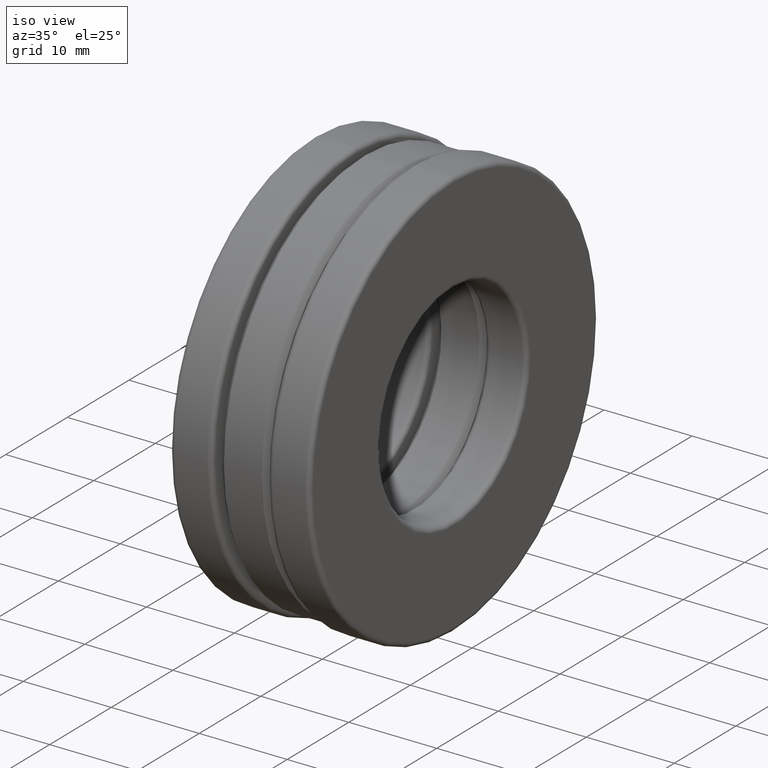
[diagram: clean part render]
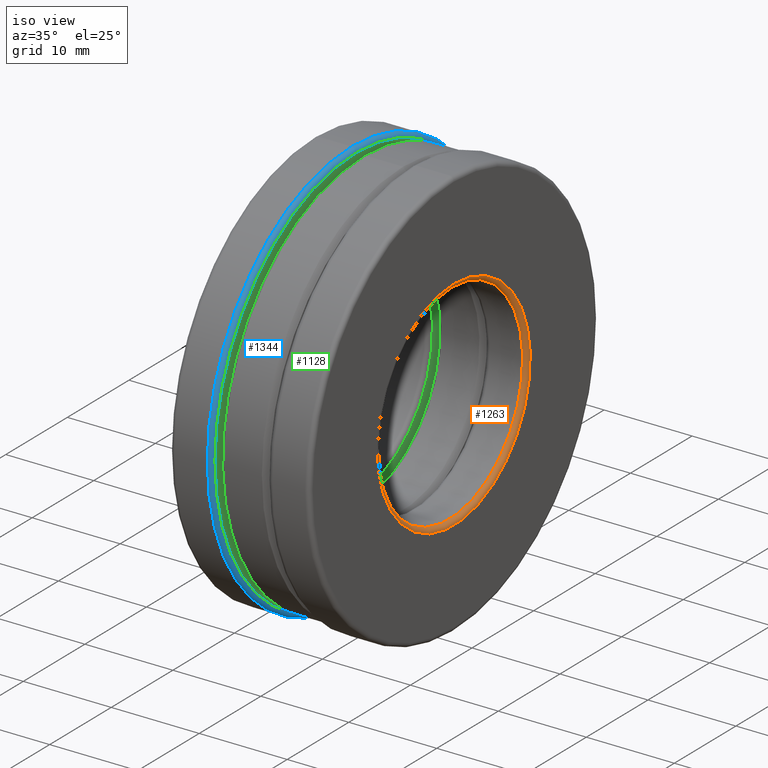
[diagram: same view with three faces highlighted in distinct colors, each labeled with its STEP entity id]
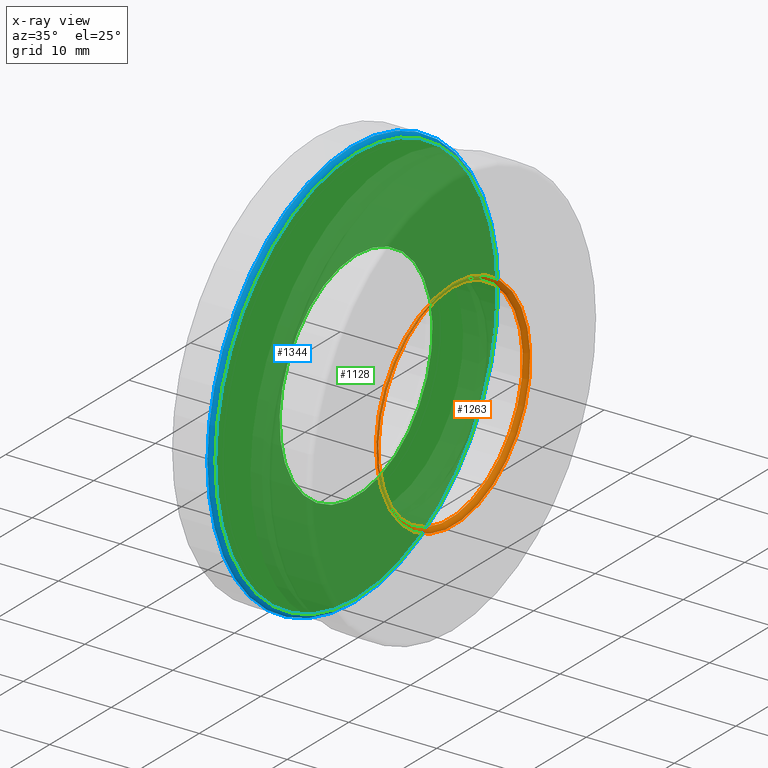
[diagram: x-ray of the same camera — body ghosted, the three highlighted faces saturated]
A machine part, iso view with three faces highlighted in distinct colors.
The next image is the same camera in x-ray (body ghosted, the three faces saturated) — at least one of them is partly hidden behind the body in this view.
Their STEP definitions:

[orange] entity #1263 — the highlighted toroidal blend (fillet) surface has major radius 12.4142 mm and minor (blend) radius 0.508 mm.
#3 = DIRECTION ( 'NONE',  ( 0.0000000000000000000, 0.0000000000000000000, 1.000000000000000000 ) ) ;
#33 = EDGE_CURVE ( 'NONE', #538, #538, #1082, .T. ) ;
#51 = ORIENTED_EDGE ( 'NONE', *, *, #33, .T. ) ;
#76 = DIRECTION ( 'NONE',  ( -1.000000000000000000, -0.0000000000000000000, -0.0000000000000000000 ) ) ;
#183 = CARTESIAN_POINT ( 'NONE',  ( 0.2925000000000000400, 0.0000000000000000000, 0.0000000000000000000 ) ) ;
#206 = DIRECTION ( 'NONE',  ( 0.0000000000000000000, 0.0000000000000000000, 1.000000000000000000 ) ) ;
#383 = CARTESIAN_POINT ( 'NONE',  ( 0.2925000000000000400, 0.0000000000000000000, 0.4687500000000000000 ) ) ;
#397 = DIRECTION ( 'NONE',  ( 0.0000000000000000000, 0.0000000000000000000, 1.000000000000000000 ) ) ;
#405 = AXIS2_PLACEMENT_3D ( 'NONE', #900, #666, #3 ) ;
#441 = VERTEX_POINT ( 'NONE', #826 ) ;
#523 = DIRECTION ( 'NONE',  ( -1.000000000000000000, -0.0000000000000000000, -0.0000000000000000000 ) ) ;
#530 = CIRCLE ( 'NONE', #786, 0.4887499999999999600 ) ;
#531 = EDGE_LOOP ( 'NONE', ( #1001 ) ) ;
#538 = VERTEX_POINT ( 'NONE', #383 ) ;
#666 = DIRECTION ( 'NONE',  ( -1.000000000000000000, -0.0000000000000000000, -0.0000000000000000000 ) ) ;
#674 = AXIS2_PLACEMENT_3D ( 'NONE', #183, #523, #397 ) ;
#786 = AXIS2_PLACEMENT_3D ( 'NONE', #974, #76, #206 ) ;
#826 = CARTESIAN_POINT ( 'NONE',  ( 0.3125000000000000000, 0.0000000000000000000, 0.4887499999999999600 ) ) ;
#900 = CARTESIAN_POINT ( 'NONE',  ( 0.2925000000000000400, 0.0000000000000000000, 0.0000000000000000000 ) ) ;
#974 = CARTESIAN_POINT ( 'NONE',  ( 0.3125000000000000000, 0.0000000000000000000, 0.0000000000000000000 ) ) ;
#979 = FACE_OUTER_BOUND ( 'NONE', #531, .T. ) ;
#1001 = ORIENTED_EDGE ( 'NONE', *, *, #1193, .F. ) ;
#1082 = CIRCLE ( 'NONE', #674, 0.4687500000000000000 ) ;
#1146 = FACE_OUTER_BOUND ( 'NONE', #1286, .T. ) ;
#1183 = TOROIDAL_SURFACE ( 'NONE', #405, 0.4887499999999999600, 0.01999999999999995900 ) ;
#1193 = EDGE_CURVE ( 'NONE', #441, #441, #530, .T. ) ;
#1263 = ADVANCED_FACE ( 'NONE', ( #979, #1146 ), #1183, .T. ) ;
#1286 = EDGE_LOOP ( 'NONE', ( #51 ) ) ;

[blue] entity #1344 — the highlighted toroidal blend (fillet) surface has major radius 22.9076 mm and minor (blend) radius 0.508 mm.
#18 = CIRCLE ( 'NONE', #1167, 0.9018749999999996500 ) ;
#82 = DIRECTION ( 'NONE',  ( -1.000000000000000000, -0.0000000000000000000, -0.0000000000000000000 ) ) ;
#145 = VERTEX_POINT ( 'NONE', #829 ) ;
#198 = FACE_OUTER_BOUND ( 'NONE', #1135, .T. ) ;
#211 = CARTESIAN_POINT ( 'NONE',  ( -0.1450000000000000500, 0.0000000000000000000, 0.9218749999999995600 ) ) ;
#234 = AXIS2_PLACEMENT_3D ( 'NONE', #444, #1361, #881 ) ;
#333 = ORIENTED_EDGE ( 'NONE', *, *, #1251, .F. ) ;
#444 = CARTESIAN_POINT ( 'NONE',  ( -0.1450000000000000500, 0.0000000000000000000, 0.0000000000000000000 ) ) ;
#639 = DIRECTION ( 'NONE',  ( 0.0000000000000000000, 0.0000000000000000000, 1.000000000000000000 ) ) ;
#743 = CARTESIAN_POINT ( 'NONE',  ( -0.1450000000000000500, 0.0000000000000000000, 0.0000000000000000000 ) ) ;
#800 = EDGE_CURVE ( 'NONE', #145, #145, #18, .T. ) ;
#814 = DIRECTION ( 'NONE',  ( 0.0000000000000000000, 0.0000000000000000000, 1.000000000000000000 ) ) ;
#822 = CARTESIAN_POINT ( 'NONE',  ( -0.1250000000000000300, 0.0000000000000000000, 0.0000000000000000000 ) ) ;
#829 = CARTESIAN_POINT ( 'NONE',  ( -0.1250000000000000300, 0.0000000000000000000, 0.9018749999999996500 ) ) ;
#881 = DIRECTION ( 'NONE',  ( 0.0000000000000000000, 0.0000000000000000000, 1.000000000000000000 ) ) ;
#962 = VERTEX_POINT ( 'NONE', #211 ) ;
#1135 = EDGE_LOOP ( 'NONE', ( #333 ) ) ;
#1167 = AXIS2_PLACEMENT_3D ( 'NONE', #822, #1282, #814 ) ;
#1251 = EDGE_CURVE ( 'NONE', #962, #962, #1444, .T. ) ;
#1254 = FACE_OUTER_BOUND ( 'NONE', #1437, .T. ) ;
#1282 = DIRECTION ( 'NONE',  ( -1.000000000000000000, -0.0000000000000000000, -0.0000000000000000000 ) ) ;
#1300 = TOROIDAL_SURFACE ( 'NONE', #1456, 0.9018749999999996500, 0.01999999999999996600 ) ;
#1344 = ADVANCED_FACE ( 'NONE', ( #198, #1254 ), #1300, .T. ) ;
#1361 = DIRECTION ( 'NONE',  ( -1.000000000000000000, -0.0000000000000000000, -0.0000000000000000000 ) ) ;
#1370 = ORIENTED_EDGE ( 'NONE', *, *, #800, .T. ) ;
#1437 = EDGE_LOOP ( 'NONE', ( #1370 ) ) ;
#1444 = CIRCLE ( 'NONE', #234, 0.9218749999999995600 ) ;
#1456 = AXIS2_PLACEMENT_3D ( 'NONE', #743, #82, #639 ) ;

[green] entity #1128 — the highlighted planar face has unit normal (1, 0, 0).
#18 = CIRCLE ( 'NONE', #1167, 0.9018749999999996500 ) ;
#145 = VERTEX_POINT ( 'NONE', #829 ) ;
#180 = DIRECTION ( 'NONE',  ( 0.0000000000000000000, 0.0000000000000000000, -1.000000000000000000 ) ) ;
#315 = ORIENTED_EDGE ( 'NONE', *, *, #800, .F. ) ;
#491 = EDGE_LOOP ( 'NONE', ( #1249 ) ) ;
#521 = CARTESIAN_POINT ( 'NONE',  ( -0.1250000000000000300, -5.166127068200201200E-018, 0.0000000000000000000 ) ) ;
#571 = VERTEX_POINT ( 'NONE', #1281 ) ;
#633 = CARTESIAN_POINT ( 'NONE',  ( -0.1250000000000000300, 0.0000000000000000000, 0.0000000000000000000 ) ) ;
#733 = DIRECTION ( 'NONE',  ( 0.0000000000000000000, 0.0000000000000000000, 1.000000000000000000 ) ) ;
#749 = DIRECTION ( 'NONE',  ( 1.000000000000000000, 0.0000000000000000000, 0.0000000000000000000 ) ) ;
#800 = EDGE_CURVE ( 'NONE', #145, #145, #18, .T. ) ;
#814 = DIRECTION ( 'NONE',  ( 0.0000000000000000000, 0.0000000000000000000, 1.000000000000000000 ) ) ;
#822 = CARTESIAN_POINT ( 'NONE',  ( -0.1250000000000000300, 0.0000000000000000000, 0.0000000000000000000 ) ) ;
#829 = CARTESIAN_POINT ( 'NONE',  ( -0.1250000000000000300, 0.0000000000000000000, 0.9018749999999996500 ) ) ;
#977 = AXIS2_PLACEMENT_3D ( 'NONE', #521, #749, #180 ) ;
#999 = FACE_OUTER_BOUND ( 'NONE', #1050, .T. ) ;
#1050 = EDGE_LOOP ( 'NONE', ( #315 ) ) ;
#1088 = PLANE ( 'NONE',  #977 ) ;
#1128 = ADVANCED_FACE ( 'NONE', ( #1297, #999 ), #1088, .T. ) ;
#1147 = EDGE_CURVE ( 'NONE', #571, #571, #1201, .T. ) ;
#1167 = AXIS2_PLACEMENT_3D ( 'NONE', #822, #1282, #814 ) ;
#1201 = CIRCLE ( 'NONE', #1359, 0.4887500000000000700 ) ;
#1249 = ORIENTED_EDGE ( 'NONE', *, *, #1147, .T. ) ;
#1281 = CARTESIAN_POINT ( 'NONE',  ( -0.1250000000000000300, 0.0000000000000000000, 0.4887500000000000700 ) ) ;
#1282 = DIRECTION ( 'NONE',  ( -1.000000000000000000, -0.0000000000000000000, -0.0000000000000000000 ) ) ;
#1297 = FACE_BOUND ( 'NONE', #491, .T. ) ;
#1359 = AXIS2_PLACEMENT_3D ( 'NONE', #633, #1438, #733 ) ;
#1438 = DIRECTION ( 'NONE',  ( -1.000000000000000000, -0.0000000000000000000, -0.0000000000000000000 ) ) ;